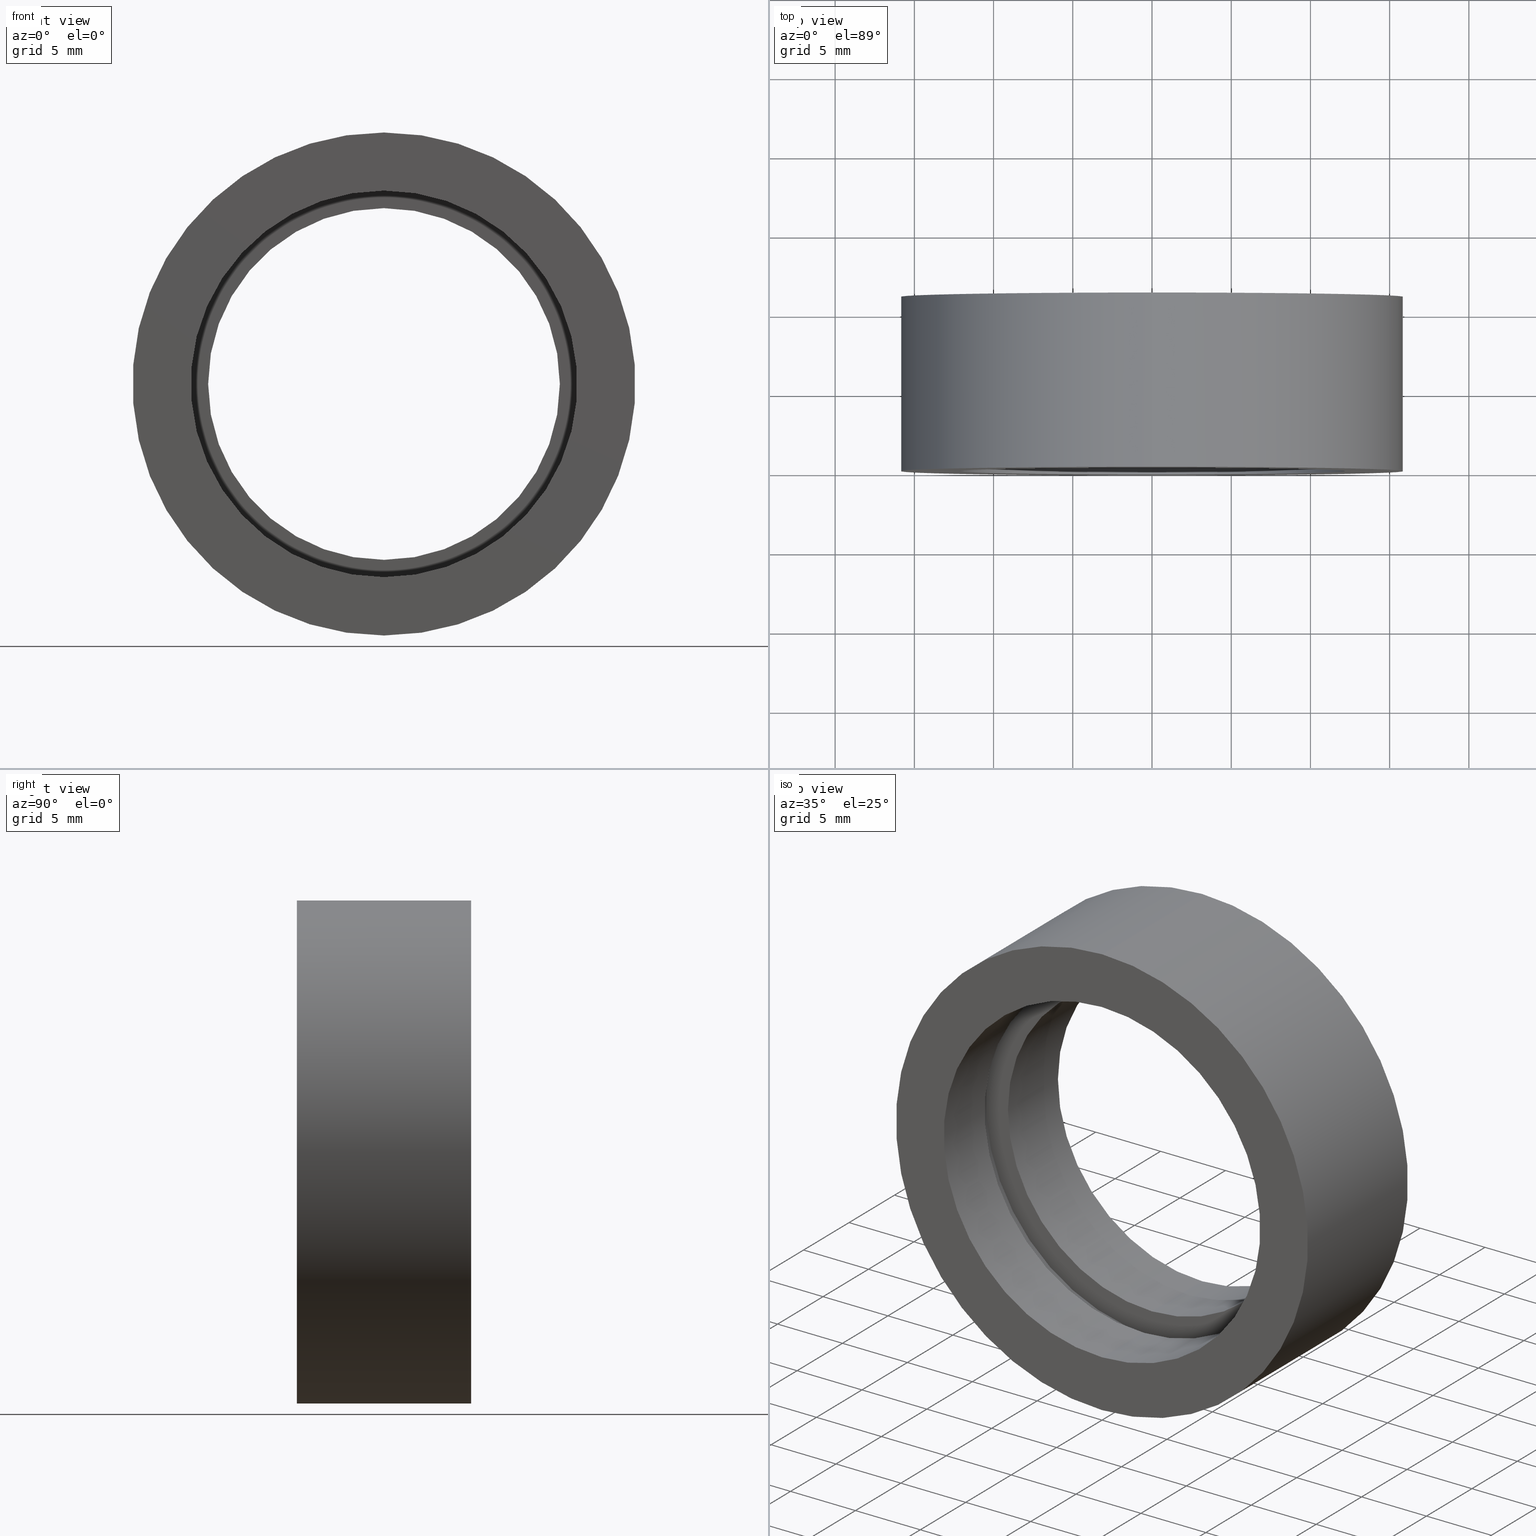
[diagram: canonical four-view strip — front | top / right | iso, engineering-drawing reading convention]
A machine part, canonical four-view strip (front | top / right | iso — engineering-drawing reading convention). The complete STEP part file that produces these views, byte-faithful:
ISO-10303-21;
HEADER;
FILE_DESCRIPTION (( 'STEP AP214' ),
    '1' );
FILE_NAME ('504081.STEP',
    '2019-10-09T08:08:35',
    ( 'user' ),
    ( '΢���й�' ),
    'SwSTEP 2.0',
    'SolidWorks 2016',
    '' );
FILE_SCHEMA (( 'AUTOMOTIVE_DESIGN' ));
ENDSEC;

DATA;
#1 = UNCERTAINTY_MEASURE_WITH_UNIT (LENGTH_MEASURE( 1.000000000000000100E-005 ), #75, 'distance_accuracy_value', 'NONE');
#2 = CARTESIAN_POINT ( 'NONE',  ( 0.0000000000000000000, 4.499999999999997300, 12.80000000000001000 ) ) ;
#3 = AXIS2_PLACEMENT_3D ( 'NONE', #423, #229, #53 ) ;
#4 = APPLICATION_PROTOCOL_DEFINITION ( 'draft international standard', 'automotive_design', 1998, #149 ) ;
#5 = ORIENTED_EDGE ( 'NONE', *, *, #259, .T. ) ;
#6 = CARTESIAN_POINT ( 'NONE',  ( 1.494069094959771600E-015, 0.0000000000000000000, -12.20000000000000600 ) ) ;
#7 = FILL_AREA_STYLE_COLOUR ( '', #82 ) ;
#8 = CYLINDRICAL_SURFACE ( 'NONE', #179, 15.87500000000000400 ) ;
#9 = SURFACE_SIDE_STYLE ('',( #403 ) ) ;
#10 = EDGE_CURVE ( 'NONE', #148, #130, #301, .T. ) ;
#11 = ORIENTED_EDGE ( 'NONE', *, *, #107, .T. ) ;
#12 = VERTEX_POINT ( 'NONE', #337 ) ;
#13 = VECTOR ( 'NONE', #92, 1000.000000000000000 ) ;
#14 = EDGE_LOOP ( 'NONE', ( #207, #347, #344, #62 ) ) ;
#15 = DIRECTION ( 'NONE',  ( 0.0000000000000000000, 0.0000000000000000000, 1.000000000000000000 ) ) ;
#16 = SURFACE_SIDE_STYLE ('',( #275 ) ) ;
#17 = EDGE_LOOP ( 'NONE', ( #284, #208, #315, #212 ) ) ;
#18 = CARTESIAN_POINT ( 'NONE',  ( 15.87500000000000400, -2.250288493433258000E-016, 0.0000000000000000000 ) ) ;
#19 = MECHANICAL_DESIGN_GEOMETRIC_PRESENTATION_REPRESENTATION (  '', ( #227 ), #237 ) ;
#20 = DIRECTION ( 'NONE',  ( -0.0000000000000000000, 1.000000000000000000, -0.0000000000000000000 ) ) ;
#21 = CYLINDRICAL_SURFACE ( 'NONE', #49, 12.80000000000001000 ) ;
#22 = EDGE_CURVE ( 'NONE', #359, #304, #164, .T. ) ;
#23 = DIRECTION ( 'NONE',  ( 0.0000000000000000000, 0.0000000000000000000, 1.000000000000000000 ) ) ;
#24 = ADVANCED_FACE ( 'NONE', ( #86, #55 ), #274, .F. ) ;
#25 = EDGE_LOOP ( 'NONE', ( #60, #239 ) ) ;
#26 = ORIENTED_EDGE ( 'NONE', *, *, #417, .T. ) ;
#27 = AXIS2_PLACEMENT_3D ( 'NONE', #230, #225, #244 ) ;
#28 = CARTESIAN_POINT ( 'NONE',  ( 1.567547902908613400E-015, 60.02082041425541100, -12.80000000000001000 ) ) ;
#29 = ORIENTED_EDGE ( 'NONE', *, *, #176, .F. ) ;
#30 = AXIS2_PLACEMENT_3D ( 'NONE', #165, #180, #102 ) ;
#31 = AXIS2_PLACEMENT_3D ( 'NONE', #175, #20, #425 ) ;
#32 = PRESENTATION_STYLE_ASSIGNMENT (( #322 ) ) ;
#33 =( NAMED_UNIT ( * ) SI_UNIT ( $, .STERADIAN. ) SOLID_ANGLE_UNIT ( ) );
#34 = PRESENTATION_LAYER_ASSIGNMENT (  '', '', ( #303 ) ) ;
#35 = DIRECTION ( 'NONE',  ( 0.0000000000000000000, 0.0000000000000000000, 1.000000000000000000 ) ) ;
#36 = DIRECTION ( 'NONE',  ( 0.0000000000000000000, 0.0000000000000000000, 1.000000000000000000 ) ) ;
#37 = ORIENTED_EDGE ( 'NONE', *, *, #48, .F. ) ;
#38 = CARTESIAN_POINT ( 'NONE',  ( 1.494069094959771600E-015, 4.499999999999997300, -12.20000000000000600 ) ) ;
#39 = VERTEX_POINT ( 'NONE', #220 ) ;
#40 =( NAMED_UNIT ( * ) PLANE_ANGLE_UNIT ( ) SI_UNIT ( $, .RADIAN. ) );
#41 = CARTESIAN_POINT ( 'NONE',  ( 0.0000000000000000000, 60.02082041425541100, 12.20000000000000600 ) ) ;
#42 = PRESENTATION_STYLE_ASSIGNMENT (( #124 ) ) ;
#43 = VERTEX_POINT ( 'NONE', #333 ) ;
#44 = EDGE_LOOP ( 'NONE', ( #223, #224 ) ) ;
#45 = CIRCLE ( 'NONE', #270, 12.20000000000000600 ) ;
#46 = FACE_OUTER_BOUND ( 'NONE', #161, .T. ) ;
#47 = FILL_AREA_STYLE ('',( #302 ) ) ;
#48 = EDGE_CURVE ( 'NONE', #196, #130, #373, .T. ) ;
#49 = AXIS2_PLACEMENT_3D ( 'NONE', #240, #118, #392 ) ;
#50 = FILL_AREA_STYLE_COLOUR ( '', #67 ) ;
#51 = DIRECTION ( 'NONE',  ( 0.0000000000000000000, 0.0000000000000000000, 1.000000000000000000 ) ) ;
#52 = VERTEX_POINT ( 'NONE', #389 ) ;
#53 = DIRECTION ( 'NONE',  ( 0.0000000000000000000, -0.0000000000000000000, -1.000000000000000000 ) ) ;
#54 = UNCERTAINTY_MEASURE_WITH_UNIT (LENGTH_MEASURE( 1.000000000000000100E-005 ), #242, 'distance_accuracy_value', 'NONE');
#55 = FACE_BOUND ( 'NONE', #44, .T. ) ;
#56 = DIRECTION ( 'NONE',  ( 0.0000000000000000000, 0.0000000000000000000, 1.000000000000000000 ) ) ;
#57 = EDGE_CURVE ( 'NONE', #85, #359, #382, .T. ) ;
#58 =( NAMED_UNIT ( * ) SI_UNIT ( $, .STERADIAN. ) SOLID_ANGLE_UNIT ( ) );
#59 = CARTESIAN_POINT ( 'NONE',  ( 0.0000000000000000000, 60.02082041425541100, 0.0000000000000000000 ) ) ;
#60 = ORIENTED_EDGE ( 'NONE', *, *, #251, .T. ) ;
#61 = DIRECTION ( 'NONE',  ( -0.0000000000000000000, 1.000000000000000000, 0.0000000000000000000 ) ) ;
#62 = ORIENTED_EDGE ( 'NONE', *, *, #201, .T. ) ;
#63 = ORIENTED_EDGE ( 'NONE', *, *, #201, .F. ) ;
#64 = CARTESIAN_POINT ( 'NONE',  ( 0.0000000000000000000, 0.0000000000000000000, 12.20000000000000600 ) ) ;
#65 = DIRECTION ( 'NONE',  ( -0.0000000000000000000, 1.000000000000000000, -0.0000000000000000000 ) ) ;
#66 = CYLINDRICAL_SURFACE ( 'NONE', #218, 12.80000000000001000 ) ;
#67 = COLOUR_RGB ( '',1.000000000000000000, 1.000000000000000000, 1.000000000000000000 ) ;
#68 = ORIENTED_EDGE ( 'NONE', *, *, #57, .T. ) ;
#69 = ORIENTED_EDGE ( 'NONE', *, *, #412, .T. ) ;
#70 = ORIENTED_EDGE ( 'NONE', *, *, #91, .T. ) ;
#71 = CYLINDRICAL_SURFACE ( 'NONE', #27, 11.10000000000000700 ) ;
#72 = CARTESIAN_POINT ( 'NONE',  ( 0.0000000000000000000, 5.499999999999998200, 0.0000000000000000000 ) ) ;
#73 = ORIENTED_EDGE ( 'NONE', *, *, #431, .F. ) ;
#74 = CARTESIAN_POINT ( 'NONE',  ( 0.0000000000000000000, 10.99999999999999600, 0.0000000000000000000 ) ) ;
#75 =( LENGTH_UNIT ( ) NAMED_UNIT ( * ) SI_UNIT ( .MILLI., .METRE. ) );
#76 = DIRECTION ( 'NONE',  ( -0.0000000000000000000, 1.000000000000000000, -0.0000000000000000000 ) ) ;
#77 =( NAMED_UNIT ( * ) SI_UNIT ( $, .STERADIAN. ) SOLID_ANGLE_UNIT ( ) );
#78 = DIRECTION ( 'NONE',  ( -0.0000000000000000000, 1.000000000000000000, -0.0000000000000000000 ) ) ;
#79 = CARTESIAN_POINT ( 'NONE',  ( 0.0000000000000000000, 0.0000000000000000000, 0.0000000000000000000 ) ) ;
#80 = DIRECTION ( 'NONE',  ( 0.0000000000000000000, -1.000000000000000000, 0.0000000000000000000 ) ) ;
#81 = UNCERTAINTY_MEASURE_WITH_UNIT (LENGTH_MEASURE( 1.000000000000000100E-005 ), #292, 'distance_accuracy_value', 'NONE');
#82 = COLOUR_RGB ( '',1.000000000000000000, 1.000000000000000000, 1.000000000000000000 ) ;
#83 = CARTESIAN_POINT ( 'NONE',  ( 1.944126793646423600E-015, 0.0000000000000000000, -15.87500000000000400 ) ) ;
#84 = EDGE_LOOP ( 'NONE', ( #63, #190 ) ) ;
#85 = VERTEX_POINT ( 'NONE', #2 ) ;
#86 = FACE_OUTER_BOUND ( 'NONE', #213, .T. ) ;
#87 = AXIS2_PLACEMENT_3D ( 'NONE', #96, #129, #195 ) ;
#88 = CARTESIAN_POINT ( 'NONE',  ( 0.0000000000000000000, 5.499999999999998200, 0.0000000000000000000 ) ) ;
#89 = DIRECTION ( 'NONE',  ( -0.0000000000000000000, 1.000000000000000000, -0.0000000000000000000 ) ) ;
#90 = DIRECTION ( 'NONE',  ( 0.0000000000000000000, 0.0000000000000000000, 1.000000000000000000 ) ) ;
#91 = EDGE_CURVE ( 'NONE', #304, #43, #426, .T. ) ;
#92 = DIRECTION ( 'NONE',  ( -0.0000000000000000000, 1.000000000000000000, -0.0000000000000000000 ) ) ;
#93 = MECHANICAL_DESIGN_GEOMETRIC_PRESENTATION_REPRESENTATION (  '', ( #363 ), #254 ) ;
#94 =( NAMED_UNIT ( * ) PLANE_ANGLE_UNIT ( ) SI_UNIT ( $, .RADIAN. ) );
#95 = PRODUCT_CONTEXT ( 'NONE', #172, 'mechanical' ) ;
#96 = CARTESIAN_POINT ( 'NONE',  ( 0.0000000000000000000, 5.499999999999998200, 0.0000000000000000000 ) ) ;
#97 = DIRECTION ( 'NONE',  ( -0.0000000000000000000, 1.000000000000000000, -0.0000000000000000000 ) ) ;
#98 = ORIENTED_EDGE ( 'NONE', *, *, #221, .F. ) ;
#99 = ORIENTED_EDGE ( 'NONE', *, *, #293, .T. ) ;
#100 = CARTESIAN_POINT ( 'NONE',  ( 1.359357947053563100E-015, 60.02082041425541100, -11.10000000000000700 ) ) ;
#101 = DIRECTION ( 'NONE',  ( -0.0000000000000000000, 1.000000000000000000, -0.0000000000000000000 ) ) ;
#102 = DIRECTION ( 'NONE',  ( 1.000000000000000000, 0.0000000000000000000, 0.0000000000000000000 ) ) ;
#103 = CARTESIAN_POINT ( 'NONE',  ( 0.0000000000000000000, 0.0000000000000000000, 0.0000000000000000000 ) ) ;
#104 = AXIS2_PLACEMENT_3D ( 'NONE', #383, #433, #23 ) ;
#105 =( NAMED_UNIT ( * ) PLANE_ANGLE_UNIT ( ) SI_UNIT ( $, .RADIAN. ) );
#106 =( NAMED_UNIT ( * ) SI_UNIT ( $, .STERADIAN. ) SOLID_ANGLE_UNIT ( ) );
#107 = EDGE_CURVE ( 'NONE', #52, #346, #310, .T. ) ;
#108 = CARTESIAN_POINT ( 'NONE',  ( 0.0000000000000000000, 10.99999999999999600, 15.87500000000000400 ) ) ;
#109 = ADVANCED_BREP_SHAPE_REPRESENTATION ( '504081', ( #155, #30 ), #395 ) ;
#110 = LINE ( 'NONE', #100, #128 ) ;
#111 = FILL_AREA_STYLE ('',( #159 ) ) ;
#112 = DIRECTION ( 'NONE',  ( -0.0000000000000000000, 1.000000000000000000, -0.0000000000000000000 ) ) ;
#113 = CYLINDRICAL_SURFACE ( 'NONE', #350, 11.10000000000000700 ) ;
#114 = CARTESIAN_POINT ( 'NONE',  ( 0.0000000000000000000, 60.02082041425541100, 11.10000000000000700 ) ) ;
#115 = ORIENTED_EDGE ( 'NONE', *, *, #245, .T. ) ;
#116 = CARTESIAN_POINT ( 'NONE',  ( 0.0000000000000000000, 5.499999999999998200, 0.0000000000000000000 ) ) ;
#117 = EDGE_LOOP ( 'NONE', ( #313, #295, #422, #308 ) ) ;
#118 = DIRECTION ( 'NONE',  ( -0.0000000000000000000, 1.000000000000000000, -0.0000000000000000000 ) ) ;
#119 = FACE_OUTER_BOUND ( 'NONE', #376, .T. ) ;
#120 = CARTESIAN_POINT ( 'NONE',  ( 1.944126793646423600E-015, 60.02082041425541100, -15.87500000000000400 ) ) ;
#121 = CARTESIAN_POINT ( 'NONE',  ( 0.0000000000000000000, 60.02082041425541100, 0.0000000000000000000 ) ) ;
#122 = EDGE_CURVE ( 'NONE', #85, #43, #300, .T. ) ;
#123 = UNCERTAINTY_MEASURE_WITH_UNIT (LENGTH_MEASURE( 1.000000000000000100E-005 ), #255, 'distance_accuracy_value', 'NONE');
#124 = SURFACE_STYLE_USAGE ( .BOTH. , #401 ) ;
#125 = VERTEX_POINT ( 'NONE', #6 ) ;
#126 = ORIENTED_EDGE ( 'NONE', *, *, #210, .F. ) ;
#127 = LINE ( 'NONE', #120, #327 ) ;
#128 = VECTOR ( 'NONE', #264, 1000.000000000000000 ) ;
#129 = DIRECTION ( 'NONE',  ( -0.0000000000000000000, 1.000000000000000000, -0.0000000000000000000 ) ) ;
#130 = VERTEX_POINT ( 'NONE', #188 ) ;
#131 = VERTEX_POINT ( 'NONE', #335 ) ;
#132 = STYLED_ITEM ( 'NONE', ( #143 ), #155 ) ;
#133 = DIRECTION ( 'NONE',  ( 0.0000000000000000000, -0.0000000000000000000, -1.000000000000000000 ) ) ;
#134 = DIRECTION ( 'NONE',  ( 0.0000000000000000000, 0.0000000000000000000, 1.000000000000000000 ) ) ;
#135 = EDGE_CURVE ( 'NONE', #286, #12, #127, .T. ) ;
#136 = CARTESIAN_POINT ( 'NONE',  ( 0.0000000000000000000, 5.499999999999998200, 11.10000000000000700 ) ) ;
#137 = CARTESIAN_POINT ( 'NONE',  ( 0.0000000000000000000, 4.499999999999997300, 0.0000000000000000000 ) ) ;
#138 = COLOUR_RGB ( '',1.000000000000000000, 1.000000000000000000, 1.000000000000000000 ) ;
#139 = DIRECTION ( 'NONE',  ( -0.0000000000000000000, 1.000000000000000000, 0.0000000000000000000 ) ) ;
#140 = CIRCLE ( 'NONE', #151, 12.20000000000000600 ) ;
#141 = VERTEX_POINT ( 'NONE', #64 ) ;
#142 = SURFACE_SIDE_STYLE ('',( #209 ) ) ;
#143 = PRESENTATION_STYLE_ASSIGNMENT (( #362 ) ) ;
#144 = CARTESIAN_POINT ( 'NONE',  ( 0.0000000000000000000, 60.02082041425541100, 0.0000000000000000000 ) ) ;
#145 = PRODUCT ( '504081', '504081', '', ( #95 ) ) ;
#146 = DIRECTION ( 'NONE',  ( -0.0000000000000000000, 1.000000000000000000, -0.0000000000000000000 ) ) ;
#147 = DIRECTION ( 'NONE',  ( -0.0000000000000000000, 1.000000000000000000, -0.0000000000000000000 ) ) ;
#148 = VERTEX_POINT ( 'NONE', #233 ) ;
#149 = APPLICATION_CONTEXT ( 'automotive_design' ) ;
#150 = ORIENTED_EDGE ( 'NONE', *, *, #122, .F. ) ;
#151 = AXIS2_PLACEMENT_3D ( 'NONE', #103, #324, #334 ) ;
#152 = CIRCLE ( 'NONE', #280, 15.87500000000000400 ) ;
#153 = DIRECTION ( 'NONE',  ( 0.0000000000000000000, 0.0000000000000000000, 1.000000000000000000 ) ) ;
#154 = COLOUR_RGB ( '',1.000000000000000000, 1.000000000000000000, 1.000000000000000000 ) ;
#155 = MANIFOLD_SOLID_BREP ( '��ת1', #273 ) ;
#156 = EDGE_CURVE ( 'NONE', #125, #141, #45, .T. ) ;
#157 = ORIENTED_EDGE ( 'NONE', *, *, #293, .F. ) ;
#158 = DIRECTION ( 'NONE',  ( -0.0000000000000000000, 1.000000000000000000, -0.0000000000000000000 ) ) ;
#159 = FILL_AREA_STYLE_COLOUR ( '', #202 ) ;
#160 =( LENGTH_UNIT ( ) NAMED_UNIT ( * ) SI_UNIT ( .MILLI., .METRE. ) );
#161 = EDGE_LOOP ( 'NONE', ( #314, #372 ) ) ;
#162 = DIRECTION ( 'NONE',  ( 0.0000000000000000000, 0.0000000000000000000, 1.000000000000000000 ) ) ;
#163 = AXIS2_PLACEMENT_3D ( 'NONE', #72, #338, #411 ) ;
#164 = LINE ( 'NONE', #28, #13 ) ;
#165 = CARTESIAN_POINT ( 'NONE',  ( 0.0000000000000000000, 0.0000000000000000000, 0.0000000000000000000 ) ) ;
#166 = DIRECTION ( 'NONE',  ( 0.0000000000000000000, 0.0000000000000000000, 1.000000000000000000 ) ) ;
#167 = PRESENTATION_LAYER_ASSIGNMENT (  '', '', ( #290 ) ) ;
#168 = FACE_OUTER_BOUND ( 'NONE', #14, .T. ) ;
#169 =( LENGTH_UNIT ( ) NAMED_UNIT ( * ) SI_UNIT ( .MILLI., .METRE. ) );
#170 = EDGE_LOOP ( 'NONE', ( #29, #98 ) ) ;
#171 = FACE_OUTER_BOUND ( 'NONE', #365, .T. ) ;
#172 = APPLICATION_CONTEXT ( 'automotive_design' ) ;
#173 = DIRECTION ( 'NONE',  ( 0.0000000000000000000, 0.0000000000000000000, 1.000000000000000000 ) ) ;
#174 = PLANE ( 'NONE',  #410 ) ;
#175 = CARTESIAN_POINT ( 'NONE',  ( 0.0000000000000000000, 60.02082041425541100, 0.0000000000000000000 ) ) ;
#176 = EDGE_CURVE ( 'NONE', #39, #413, #400, .T. ) ;
#177 = EDGE_LOOP ( 'NONE', ( #115, #289, #381, #429 ) ) ;
#178 = EDGE_CURVE ( 'NONE', #43, #304, #200, .T. ) ;
#179 = AXIS2_PLACEMENT_3D ( 'NONE', #59, #112, #283 ) ;
#180 = DIRECTION ( 'NONE',  ( 0.0000000000000000000, 0.0000000000000000000, 1.000000000000000000 ) ) ;
#181 = APPLICATION_PROTOCOL_DEFINITION ( 'draft international standard', 'automotive_design', 1998, #172 ) ;
#182 = VECTOR ( 'NONE', #146, 1000.000000000000000 ) ;
#183 = CIRCLE ( 'NONE', #311, 15.87500000000000400 ) ;
#184 = EDGE_LOOP ( 'NONE', ( #26, #99 ) ) ;
#185 = CARTESIAN_POINT ( 'NONE',  ( 0.0000000000000000000, 60.02082041425541100, 15.87500000000000400 ) ) ;
#186 = PLANE ( 'NONE',  #388 ) ;
#187 = EDGE_LOOP ( 'NONE', ( #189, #69, #355, #37 ) ) ;
#188 = CARTESIAN_POINT ( 'NONE',  ( 0.0000000000000000000, 10.99999999999999600, 11.10000000000000700 ) ) ;
#189 = ORIENTED_EDGE ( 'NONE', *, *, #424, .F. ) ;
#190 = ORIENTED_EDGE ( 'NONE', *, *, #10, .F. ) ;
#191 = CARTESIAN_POINT ( 'NONE',  ( 0.0000000000000000000, 4.499999999999997300, 0.0000000000000000000 ) ) ;
#192 = VECTOR ( 'NONE', #358, 1000.000000000000000 ) ;
#193 = DIRECTION ( 'NONE',  ( -0.0000000000000000000, 1.000000000000000000, -0.0000000000000000000 ) ) ;
#194 = CIRCLE ( 'NONE', #236, 11.10000000000000700 ) ;
#195 = DIRECTION ( 'NONE',  ( 0.0000000000000000000, 0.0000000000000000000, 1.000000000000000000 ) ) ;
#196 = VERTEX_POINT ( 'NONE', #136 ) ;
#197 = CYLINDRICAL_SURFACE ( 'NONE', #356, 15.87500000000000400 ) ;
#198 = EDGE_LOOP ( 'NONE', ( #398, #298, #11, #157 ) ) ;
#199 = ORIENTED_EDGE ( 'NONE', *, *, #176, .T. ) ;
#200 = CIRCLE ( 'NONE', #279, 12.80000000000000800 ) ;
#201 = EDGE_CURVE ( 'NONE', #130, #148, #269, .T. ) ;
#202 = COLOUR_RGB ( '',1.000000000000000000, 1.000000000000000000, 1.000000000000000000 ) ;
#203 = SURFACE_STYLE_FILL_AREA ( #276 ) ;
#204 = UNCERTAINTY_MEASURE_WITH_UNIT (LENGTH_MEASURE( 1.000000000000000100E-005 ), #160, 'distance_accuracy_value', 'NONE');
#205 = CARTESIAN_POINT ( 'NONE',  ( 0.0000000000000000000, 4.499999999999997300, 0.0000000000000000000 ) ) ;
#206 = SURFACE_SIDE_STYLE ('',( #203 ) ) ;
#207 = ORIENTED_EDGE ( 'NONE', *, *, #412, .F. ) ;
#208 = ORIENTED_EDGE ( 'NONE', *, *, #404, .T. ) ;
#209 = SURFACE_STYLE_FILL_AREA ( #253 ) ;
#210 = EDGE_CURVE ( 'NONE', #359, #85, #369, .T. ) ;
#211 = AXIS2_PLACEMENT_3D ( 'NONE', #18, #139, #294 ) ;
#212 = ORIENTED_EDGE ( 'NONE', *, *, #259, .F. ) ;
#213 = EDGE_LOOP ( 'NONE', ( #402, #364 ) ) ;
#214 =( GEOMETRIC_REPRESENTATION_CONTEXT ( 3 ) GLOBAL_UNCERTAINTY_ASSIGNED_CONTEXT ( ( #123 ) ) GLOBAL_UNIT_ASSIGNED_CONTEXT ( ( #255, #94, #33 ) ) REPRESENTATION_CONTEXT ( 'NONE', 'WORKASPACE' ) );
#215 = LINE ( 'NONE', #396, #366 ) ;
#216 = DIRECTION ( 'NONE',  ( -0.0000000000000000000, 1.000000000000000000, -0.0000000000000000000 ) ) ;
#217 = ADVANCED_FACE ( 'NONE', ( #46, #250 ), #174, .F. ) ;
#218 = AXIS2_PLACEMENT_3D ( 'NONE', #144, #101, #90 ) ;
#219 = FACE_OUTER_BOUND ( 'NONE', #198, .T. ) ;
#220 = CARTESIAN_POINT ( 'NONE',  ( 0.0000000000000000000, 4.499999999999997300, 12.20000000000000600 ) ) ;
#221 = EDGE_CURVE ( 'NONE', #413, #39, #235, .T. ) ;
#222 = DIRECTION ( 'NONE',  ( -0.0000000000000000000, 1.000000000000000000, -0.0000000000000000000 ) ) ;
#223 = ORIENTED_EDGE ( 'NONE', *, *, #431, .T. ) ;
#224 = ORIENTED_EDGE ( 'NONE', *, *, #156, .T. ) ;
#225 = DIRECTION ( 'NONE',  ( -0.0000000000000000000, 1.000000000000000000, -0.0000000000000000000 ) ) ;
#226 = CIRCLE ( 'NONE', #87, 11.10000000000000700 ) ;
#227 = STYLED_ITEM ( 'NONE', ( #42 ), #297 ) ;
#228 = FACE_OUTER_BOUND ( 'NONE', #187, .T. ) ;
#229 = DIRECTION ( 'NONE',  ( 0.0000000000000000000, -1.000000000000000000, 0.0000000000000000000 ) ) ;
#230 = CARTESIAN_POINT ( 'NONE',  ( 0.0000000000000000000, 60.02082041425541100, 0.0000000000000000000 ) ) ;
#231 = PRESENTATION_LAYER_ASSIGNMENT (  '', '', ( #132 ) ) ;
#232 = UNCERTAINTY_MEASURE_WITH_UNIT (LENGTH_MEASURE( 1.000000000000000100E-005 ), #260, 'distance_accuracy_value', 'NONE');
#233 = CARTESIAN_POINT ( 'NONE',  ( 1.359357947053563100E-015, 10.99999999999999600, -11.10000000000000700 ) ) ;
#234 = AXIS2_PLACEMENT_3D ( 'NONE', #74, #367, #390 ) ;
#235 = CIRCLE ( 'NONE', #384, 12.20000000000000600 ) ;
#236 = AXIS2_PLACEMENT_3D ( 'NONE', #116, #299, #409 ) ;
#237 =( GEOMETRIC_REPRESENTATION_CONTEXT ( 3 ) GLOBAL_UNCERTAINTY_ASSIGNED_CONTEXT ( ( #204 ) ) GLOBAL_UNIT_ASSIGNED_CONTEXT ( ( #160, #105, #106 ) ) REPRESENTATION_CONTEXT ( 'NONE', 'WORKASPACE' ) );
#238 = SURFACE_STYLE_FILL_AREA ( #374 ) ;
#239 = ORIENTED_EDGE ( 'NONE', *, *, #424, .T. ) ;
#240 = CARTESIAN_POINT ( 'NONE',  ( 0.0000000000000000000, 60.02082041425541100, 0.0000000000000000000 ) ) ;
#241 = COLOUR_RGB ( '',1.000000000000000000, 1.000000000000000000, 1.000000000000000000 ) ;
#242 =( LENGTH_UNIT ( ) NAMED_UNIT ( * ) SI_UNIT ( .MILLI., .METRE. ) );
#243 = ADVANCED_FACE ( 'NONE', ( #119 ), #331, .F. ) ;
#244 = DIRECTION ( 'NONE',  ( 0.0000000000000000000, 0.0000000000000000000, 1.000000000000000000 ) ) ;
#245 = EDGE_CURVE ( 'NONE', #52, #286, #152, .T. ) ;
#246 = AXIS2_PLACEMENT_3D ( 'NONE', #378, #256, #162 ) ;
#247 = DIRECTION ( 'NONE',  ( -0.0000000000000000000, 1.000000000000000000, -0.0000000000000000000 ) ) ;
#248 =( GEOMETRIC_REPRESENTATION_CONTEXT ( 3 ) GLOBAL_UNCERTAINTY_ASSIGNED_CONTEXT ( ( #54 ) ) GLOBAL_UNIT_ASSIGNED_CONTEXT ( ( #242, #258, #312 ) ) REPRESENTATION_CONTEXT ( 'NONE', 'WORKASPACE' ) );
#249 = ORIENTED_EDGE ( 'NONE', *, *, #22, .T. ) ;
#250 = FACE_BOUND ( 'NONE', #25, .T. ) ;
#251 = EDGE_CURVE ( 'NONE', #196, #131, #194, .T. ) ;
#252 = SHAPE_DEFINITION_REPRESENTATION ( #265, #109 ) ;
#253 = FILL_AREA_STYLE ('',( #399 ) ) ;
#254 =( GEOMETRIC_REPRESENTATION_CONTEXT ( 3 ) GLOBAL_UNCERTAINTY_ASSIGNED_CONTEXT ( ( #414 ) ) GLOBAL_UNIT_ASSIGNED_CONTEXT ( ( #169, #40, #77 ) ) REPRESENTATION_CONTEXT ( 'NONE', 'WORKASPACE' ) );
#255 =( LENGTH_UNIT ( ) NAMED_UNIT ( * ) SI_UNIT ( .MILLI., .METRE. ) );
#256 = DIRECTION ( 'NONE',  ( -0.0000000000000000000, 1.000000000000000000, -0.0000000000000000000 ) ) ;
#257 = SURFACE_STYLE_USAGE ( .BOTH. , #16 ) ;
#258 =( NAMED_UNIT ( * ) PLANE_ANGLE_UNIT ( ) SI_UNIT ( $, .RADIAN. ) );
#259 = EDGE_CURVE ( 'NONE', #141, #39, #419, .T. ) ;
#260 =( LENGTH_UNIT ( ) NAMED_UNIT ( * ) SI_UNIT ( .MILLI., .METRE. ) );
#261 = MECHANICAL_DESIGN_GEOMETRIC_PRESENTATION_REPRESENTATION (  '', ( #132 ), #272 ) ;
#262 = SURFACE_STYLE_FILL_AREA ( #47 ) ;
#263 = PRESENTATION_LAYER_ASSIGNMENT (  '', '', ( #227 ) ) ;
#264 = DIRECTION ( 'NONE',  ( -0.0000000000000000000, 1.000000000000000000, -0.0000000000000000000 ) ) ;
#265 = PRODUCT_DEFINITION_SHAPE ( 'NONE', 'NONE',  #377 ) ;
#266 = FACE_OUTER_BOUND ( 'NONE', #17, .T. ) ;
#267 = ADVANCED_FACE ( 'NONE', ( #336 ), #66, .F. ) ;
#268 = ADVANCED_FACE ( 'NONE', ( #168 ), #113, .F. ) ;
#269 = CIRCLE ( 'NONE', #325, 11.10000000000000700 ) ;
#270 = AXIS2_PLACEMENT_3D ( 'NONE', #375, #97, #166 ) ;
#271 = PRESENTATION_STYLE_ASSIGNMENT (( #354 ) ) ;
#272 =( GEOMETRIC_REPRESENTATION_CONTEXT ( 3 ) GLOBAL_UNCERTAINTY_ASSIGNED_CONTEXT ( ( #232 ) ) GLOBAL_UNIT_ASSIGNED_CONTEXT ( ( #260, #427, #432 ) ) REPRESENTATION_CONTEXT ( 'NONE', 'WORKASPACE' ) );
#273 = CLOSED_SHELL ( 'NONE', ( #320, #297, #386, #352, #24, #243, #348, #267, #217, #268, #385, #393 ) ) ;
#274 = PLANE ( 'NONE',  #211 ) ;
#275 = SURFACE_STYLE_FILL_AREA ( #111 ) ;
#276 = FILL_AREA_STYLE ('',( #50 ) ) ;
#277 = DIRECTION ( 'NONE',  ( 0.0000000000000000000, 0.0000000000000000000, 1.000000000000000000 ) ) ;
#278 = CARTESIAN_POINT ( 'NONE',  ( 0.0000000000000000000, 60.02082041425541100, 0.0000000000000000000 ) ) ;
#279 = AXIS2_PLACEMENT_3D ( 'NONE', #88, #89, #173 ) ;
#280 = AXIS2_PLACEMENT_3D ( 'NONE', #79, #216, #15 ) ;
#281 = AXIS2_PLACEMENT_3D ( 'NONE', #137, #428, #277 ) ;
#282 =( GEOMETRIC_REPRESENTATION_CONTEXT ( 3 ) GLOBAL_UNCERTAINTY_ASSIGNED_CONTEXT ( ( #1 ) ) GLOBAL_UNIT_ASSIGNED_CONTEXT ( ( #75, #319, #58 ) ) REPRESENTATION_CONTEXT ( 'NONE', 'WORKASPACE' ) );
#283 = DIRECTION ( 'NONE',  ( 0.0000000000000000000, 0.0000000000000000000, 1.000000000000000000 ) ) ;
#284 = ORIENTED_EDGE ( 'NONE', *, *, #156, .F. ) ;
#285 = FILL_AREA_STYLE_COLOUR ( '', #138 ) ;
#286 = VERTEX_POINT ( 'NONE', #83 ) ;
#287 = FILL_AREA_STYLE ('',( #285 ) ) ;
#288 = FACE_OUTER_BOUND ( 'NONE', #184, .T. ) ;
#289 = ORIENTED_EDGE ( 'NONE', *, *, #135, .T. ) ;
#290 = STYLED_ITEM ( 'NONE', ( #351 ), #352 ) ;
#291 = CARTESIAN_POINT ( 'NONE',  ( 0.0000000000000000000, 0.0000000000000000000, 0.0000000000000000000 ) ) ;
#292 =( LENGTH_UNIT ( ) NAMED_UNIT ( * ) SI_UNIT ( .MILLI., .METRE. ) );
#293 = EDGE_CURVE ( 'NONE', #12, #346, #183, .T. ) ;
#294 = DIRECTION ( 'NONE',  ( 0.0000000000000000000, 0.0000000000000000000, 1.000000000000000000 ) ) ;
#295 = ORIENTED_EDGE ( 'NONE', *, *, #57, .F. ) ;
#296 = CIRCLE ( 'NONE', #234, 15.87500000000000400 ) ;
#297 = ADVANCED_FACE ( 'NONE', ( #228 ), #71, .F. ) ;
#298 = ORIENTED_EDGE ( 'NONE', *, *, #316, .T. ) ;
#299 = DIRECTION ( 'NONE',  ( -0.0000000000000000000, 1.000000000000000000, -0.0000000000000000000 ) ) ;
#300 = LINE ( 'NONE', #340, #394 ) ;
#301 = CIRCLE ( 'NONE', #104, 11.10000000000000700 ) ;
#302 = FILL_AREA_STYLE_COLOUR ( '', #154 ) ;
#303 = STYLED_ITEM ( 'NONE', ( #271 ), #268 ) ;
#304 = VERTEX_POINT ( 'NONE', #317 ) ;
#305 = DIRECTION ( 'NONE',  ( 0.0000000000000000000, 0.0000000000000000000, 1.000000000000000000 ) ) ;
#306 = AXIS2_PLACEMENT_3D ( 'NONE', #205, #65, #36 ) ;
#307 = SURFACE_SIDE_STYLE ('',( #238 ) ) ;
#308 = ORIENTED_EDGE ( 'NONE', *, *, #178, .T. ) ;
#309 = FACE_BOUND ( 'NONE', #84, .T. ) ;
#310 = LINE ( 'NONE', #185, #418 ) ;
#311 = AXIS2_PLACEMENT_3D ( 'NONE', #321, #247, #318 ) ;
#312 =( NAMED_UNIT ( * ) SI_UNIT ( $, .STERADIAN. ) SOLID_ANGLE_UNIT ( ) );
#313 = ORIENTED_EDGE ( 'NONE', *, *, #22, .F. ) ;
#314 = ORIENTED_EDGE ( 'NONE', *, *, #178, .F. ) ;
#315 = ORIENTED_EDGE ( 'NONE', *, *, #221, .T. ) ;
#316 = EDGE_CURVE ( 'NONE', #286, #52, #405, .T. ) ;
#317 = CARTESIAN_POINT ( 'NONE',  ( 1.567547902908613200E-015, 5.499999999999998200, -12.80000000000000800 ) ) ;
#318 = DIRECTION ( 'NONE',  ( 0.0000000000000000000, 0.0000000000000000000, 1.000000000000000000 ) ) ;
#319 =( NAMED_UNIT ( * ) PLANE_ANGLE_UNIT ( ) SI_UNIT ( $, .RADIAN. ) );
#320 = ADVANCED_FACE ( 'NONE', ( #323 ), #197, .T. ) ;
#321 = CARTESIAN_POINT ( 'NONE',  ( 0.0000000000000000000, 10.99999999999999600, 0.0000000000000000000 ) ) ;
#322 = SURFACE_STYLE_USAGE ( .BOTH. , #9 ) ;
#323 = FACE_OUTER_BOUND ( 'NONE', #177, .T. ) ;
#324 = DIRECTION ( 'NONE',  ( -0.0000000000000000000, 1.000000000000000000, -0.0000000000000000000 ) ) ;
#325 = AXIS2_PLACEMENT_3D ( 'NONE', #416, #222, #305 ) ;
#326 = PRODUCT_DEFINITION_CONTEXT ( 'detailed design', #149, 'design' ) ;
#327 = VECTOR ( 'NONE', #330, 1000.000000000000000 ) ;
#328 = PRESENTATION_LAYER_ASSIGNMENT (  '', '', ( #363 ) ) ;
#329 = SURFACE_STYLE_USAGE ( .BOTH. , #206 ) ;
#330 = DIRECTION ( 'NONE',  ( -0.0000000000000000000, 1.000000000000000000, -0.0000000000000000000 ) ) ;
#331 = CYLINDRICAL_SURFACE ( 'NONE', #31, 12.20000000000000600 ) ;
#332 = MECHANICAL_DESIGN_GEOMETRIC_PRESENTATION_REPRESENTATION (  '', ( #290 ), #214 ) ;
#333 = CARTESIAN_POINT ( 'NONE',  ( 0.0000000000000000000, 5.499999999999998200, 12.80000000000000800 ) ) ;
#334 = DIRECTION ( 'NONE',  ( 0.0000000000000000000, 0.0000000000000000000, 1.000000000000000000 ) ) ;
#335 = CARTESIAN_POINT ( 'NONE',  ( 1.359357947053563100E-015, 5.499999999999998200, -11.10000000000000700 ) ) ;
#336 = FACE_OUTER_BOUND ( 'NONE', #117, .T. ) ;
#337 = CARTESIAN_POINT ( 'NONE',  ( 1.944126793646423600E-015, 10.99999999999999600, -15.87500000000000400 ) ) ;
#338 = DIRECTION ( 'NONE',  ( -0.0000000000000000000, 1.000000000000000000, -0.0000000000000000000 ) ) ;
#339 = CARTESIAN_POINT ( 'NONE',  ( 12.80000000000000800, 5.500000000000000000, 0.0000000000000000000 ) ) ;
#340 = CARTESIAN_POINT ( 'NONE',  ( 0.0000000000000000000, 60.02082041425541100, 12.80000000000001000 ) ) ;
#341 = PRODUCT_DEFINITION_FORMATION_WITH_SPECIFIED_SOURCE ( '�κ�', '', #145, .NOT_KNOWN. ) ;
#342 = ORIENTED_EDGE ( 'NONE', *, *, #404, .F. ) ;
#343 = DIRECTION ( 'NONE',  ( -0.0000000000000000000, 1.000000000000000000, -0.0000000000000000000 ) ) ;
#344 = ORIENTED_EDGE ( 'NONE', *, *, #48, .T. ) ;
#345 = DIRECTION ( 'NONE',  ( -0.0000000000000000000, 1.000000000000000000, -0.0000000000000000000 ) ) ;
#346 = VERTEX_POINT ( 'NONE', #108 ) ;
#347 = ORIENTED_EDGE ( 'NONE', *, *, #251, .F. ) ;
#348 = ADVANCED_FACE ( 'NONE', ( #434, #360 ), #186, .F. ) ;
#349 = ORIENTED_EDGE ( 'NONE', *, *, #210, .T. ) ;
#350 = AXIS2_PLACEMENT_3D ( 'NONE', #278, #343, #51 ) ;
#351 = PRESENTATION_STYLE_ASSIGNMENT (( #257 ) ) ;
#352 = ADVANCED_FACE ( 'NONE', ( #266 ), #408, .F. ) ;
#353 = AXIS2_PLACEMENT_3D ( 'NONE', #191, #193, #35 ) ;
#354 = SURFACE_STYLE_USAGE ( .BOTH. , #307 ) ;
#355 = ORIENTED_EDGE ( 'NONE', *, *, #10, .T. ) ;
#356 = AXIS2_PLACEMENT_3D ( 'NONE', #121, #158, #153 ) ;
#357 = CARTESIAN_POINT ( 'NONE',  ( 12.20000000000000600, 4.500000000000000000, 0.0000000000000000000 ) ) ;
#358 = DIRECTION ( 'NONE',  ( -0.0000000000000000000, 1.000000000000000000, -0.0000000000000000000 ) ) ;
#359 = VERTEX_POINT ( 'NONE', #407 ) ;
#360 = FACE_OUTER_BOUND ( 'NONE', #371, .T. ) ;
#361 = DIRECTION ( 'NONE',  ( 0.0000000000000000000, 0.0000000000000000000, 1.000000000000000000 ) ) ;
#362 = SURFACE_STYLE_USAGE ( .BOTH. , #142 ) ;
#363 = STYLED_ITEM ( 'NONE', ( #421 ), #109 ) ;
#364 = ORIENTED_EDGE ( 'NONE', *, *, #316, .F. ) ;
#365 = EDGE_LOOP ( 'NONE', ( #126, #249, #70, #150 ) ) ;
#366 = VECTOR ( 'NONE', #76, 1000.000000000000000 ) ;
#367 = DIRECTION ( 'NONE',  ( -0.0000000000000000000, 1.000000000000000000, -0.0000000000000000000 ) ) ;
#368 = PRESENTATION_LAYER_ASSIGNMENT (  '', '', ( #387 ) ) ;
#369 = CIRCLE ( 'NONE', #306, 12.80000000000001000 ) ;
#370 = MECHANICAL_DESIGN_GEOMETRIC_PRESENTATION_REPRESENTATION (  '', ( #387 ), #282 ) ;
#371 = EDGE_LOOP ( 'NONE', ( #68, #349 ) ) ;
#372 = ORIENTED_EDGE ( 'NONE', *, *, #91, .F. ) ;
#373 = LINE ( 'NONE', #114, #192 ) ;
#374 = FILL_AREA_STYLE ('',( #7 ) ) ;
#375 = CARTESIAN_POINT ( 'NONE',  ( 0.0000000000000000000, 0.0000000000000000000, 0.0000000000000000000 ) ) ;
#376 = EDGE_LOOP ( 'NONE', ( #342, #73, #5, #199 ) ) ;
#377 = PRODUCT_DEFINITION ( 'δ֪', '', #341, #326 ) ;
#378 = CARTESIAN_POINT ( 'NONE',  ( 0.0000000000000000000, 60.02082041425541100, 0.0000000000000000000 ) ) ;
#379 = DIRECTION ( 'NONE',  ( -0.0000000000000000000, 1.000000000000000000, -0.0000000000000000000 ) ) ;
#380 = AXIS2_PLACEMENT_3D ( 'NONE', #291, #147, #361 ) ;
#381 = ORIENTED_EDGE ( 'NONE', *, *, #417, .F. ) ;
#382 = CIRCLE ( 'NONE', #353, 12.80000000000001000 ) ;
#383 = CARTESIAN_POINT ( 'NONE',  ( 0.0000000000000000000, 10.99999999999999600, 0.0000000000000000000 ) ) ;
#384 = AXIS2_PLACEMENT_3D ( 'NONE', #430, #78, #134 ) ;
#385 = ADVANCED_FACE ( 'NONE', ( #309, #288 ), #406, .F. ) ;
#386 = ADVANCED_FACE ( 'NONE', ( #171 ), #21, .F. ) ;
#387 = STYLED_ITEM ( 'NONE', ( #32 ), #243 ) ;
#388 = AXIS2_PLACEMENT_3D ( 'NONE', #357, #80, #133 ) ;
#389 = CARTESIAN_POINT ( 'NONE',  ( 0.0000000000000000000, 0.0000000000000000000, 15.87500000000000400 ) ) ;
#390 = DIRECTION ( 'NONE',  ( 0.0000000000000000000, 0.0000000000000000000, 1.000000000000000000 ) ) ;
#391 = MECHANICAL_DESIGN_GEOMETRIC_PRESENTATION_REPRESENTATION (  '', ( #303 ), #248 ) ;
#392 = DIRECTION ( 'NONE',  ( 0.0000000000000000000, 0.0000000000000000000, 1.000000000000000000 ) ) ;
#393 = ADVANCED_FACE ( 'NONE', ( #219 ), #8, .T. ) ;
#394 = VECTOR ( 'NONE', #345, 1000.000000000000000 ) ;
#395 =( GEOMETRIC_REPRESENTATION_CONTEXT ( 3 ) GLOBAL_UNCERTAINTY_ASSIGNED_CONTEXT ( ( #81 ) ) GLOBAL_UNIT_ASSIGNED_CONTEXT ( ( #292, #397, #420 ) ) REPRESENTATION_CONTEXT ( 'NONE', 'WORKASPACE' ) );
#396 = CARTESIAN_POINT ( 'NONE',  ( 1.494069094959771600E-015, 60.02082041425541100, -12.20000000000000600 ) ) ;
#397 =( NAMED_UNIT ( * ) PLANE_ANGLE_UNIT ( ) SI_UNIT ( $, .RADIAN. ) );
#398 = ORIENTED_EDGE ( 'NONE', *, *, #135, .F. ) ;
#399 = FILL_AREA_STYLE_COLOUR ( '', #241 ) ;
#400 = CIRCLE ( 'NONE', #281, 12.20000000000000600 ) ;
#401 = SURFACE_SIDE_STYLE ('',( #262 ) ) ;
#402 = ORIENTED_EDGE ( 'NONE', *, *, #245, .F. ) ;
#403 = SURFACE_STYLE_FILL_AREA ( #287 ) ;
#404 = EDGE_CURVE ( 'NONE', #125, #413, #215, .T. ) ;
#405 = CIRCLE ( 'NONE', #380, 15.87500000000000400 ) ;
#406 = PLANE ( 'NONE',  #3 ) ;
#407 = CARTESIAN_POINT ( 'NONE',  ( 1.567547902908613400E-015, 4.499999999999997300, -12.80000000000001000 ) ) ;
#408 = CYLINDRICAL_SURFACE ( 'NONE', #246, 12.20000000000000600 ) ;
#409 = DIRECTION ( 'NONE',  ( 0.0000000000000000000, 0.0000000000000000000, 1.000000000000000000 ) ) ;
#410 = AXIS2_PLACEMENT_3D ( 'NONE', #339, #61, #56 ) ;
#411 = DIRECTION ( 'NONE',  ( 0.0000000000000000000, 0.0000000000000000000, 1.000000000000000000 ) ) ;
#412 = EDGE_CURVE ( 'NONE', #131, #148, #110, .T. ) ;
#413 = VERTEX_POINT ( 'NONE', #38 ) ;
#414 = UNCERTAINTY_MEASURE_WITH_UNIT (LENGTH_MEASURE( 1.000000000000000100E-005 ), #169, 'distance_accuracy_value', 'NONE');
#415 = PRODUCT_RELATED_PRODUCT_CATEGORY ( 'part', '', ( #145 ) ) ;
#416 = CARTESIAN_POINT ( 'NONE',  ( 0.0000000000000000000, 10.99999999999999600, 0.0000000000000000000 ) ) ;
#417 = EDGE_CURVE ( 'NONE', #346, #12, #296, .T. ) ;
#418 = VECTOR ( 'NONE', #379, 1000.000000000000000 ) ;
#419 = LINE ( 'NONE', #41, #182 ) ;
#420 =( NAMED_UNIT ( * ) SI_UNIT ( $, .STERADIAN. ) SOLID_ANGLE_UNIT ( ) );
#421 = PRESENTATION_STYLE_ASSIGNMENT (( #329 ) ) ;
#422 = ORIENTED_EDGE ( 'NONE', *, *, #122, .T. ) ;
#423 = CARTESIAN_POINT ( 'NONE',  ( 11.10000000000000700, 11.00000000000000000, 0.0000000000000000000 ) ) ;
#424 = EDGE_CURVE ( 'NONE', #131, #196, #226, .T. ) ;
#425 = DIRECTION ( 'NONE',  ( 0.0000000000000000000, 0.0000000000000000000, 1.000000000000000000 ) ) ;
#426 = CIRCLE ( 'NONE', #163, 12.80000000000000800 ) ;
#427 =( NAMED_UNIT ( * ) PLANE_ANGLE_UNIT ( ) SI_UNIT ( $, .RADIAN. ) );
#428 = DIRECTION ( 'NONE',  ( -0.0000000000000000000, 1.000000000000000000, -0.0000000000000000000 ) ) ;
#429 = ORIENTED_EDGE ( 'NONE', *, *, #107, .F. ) ;
#430 = CARTESIAN_POINT ( 'NONE',  ( 0.0000000000000000000, 4.499999999999997300, 0.0000000000000000000 ) ) ;
#431 = EDGE_CURVE ( 'NONE', #141, #125, #140, .T. ) ;
#432 =( NAMED_UNIT ( * ) SI_UNIT ( $, .STERADIAN. ) SOLID_ANGLE_UNIT ( ) );
#433 = DIRECTION ( 'NONE',  ( -0.0000000000000000000, 1.000000000000000000, -0.0000000000000000000 ) ) ;
#434 = FACE_BOUND ( 'NONE', #170, .T. ) ;
ENDSEC;
END-ISO-10303-21;
